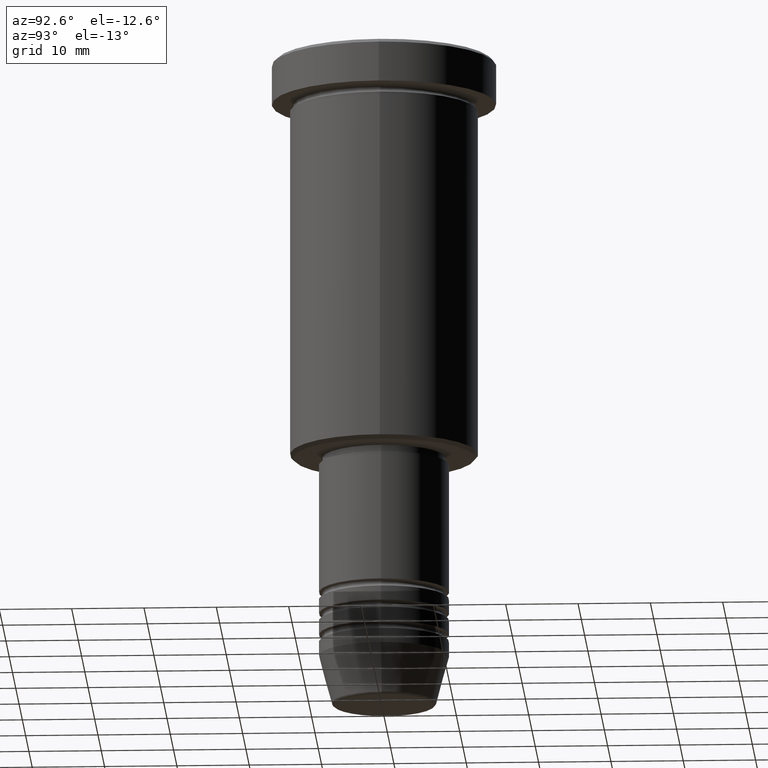
[diagram: clean part render]
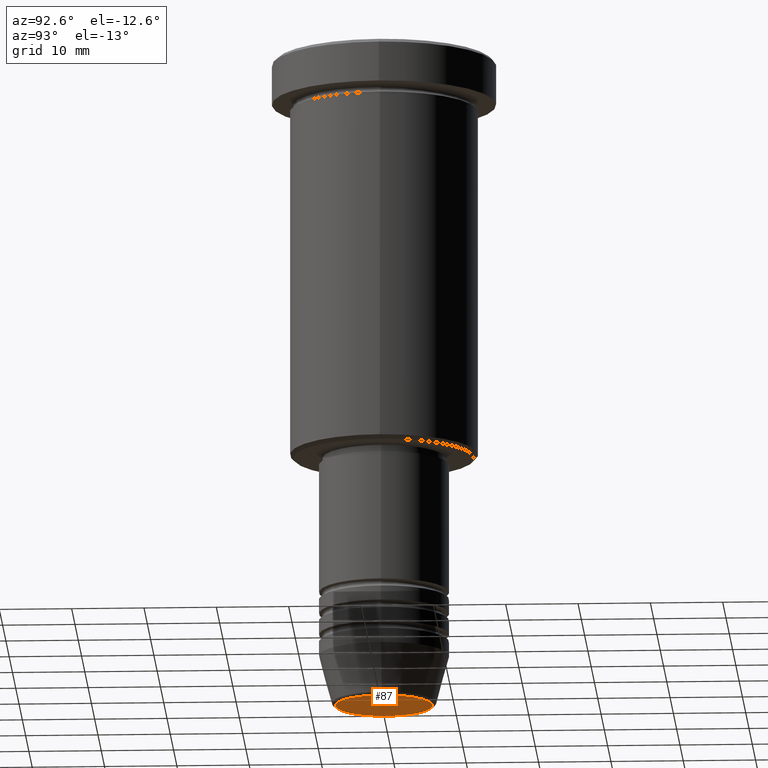
[diagram: same view with one face highlighted and labeled with its STEP entity id]
A machine part, auxiliary view. The second image highlights one B-rep face of the part: STEP entity #87.
In plain terms, the highlighted planar face has unit normal (0, -0, 1).
Its self-contained STEP definition (entity closure, byte-faithful):
#41 = VERTEX_POINT ( 'NONE', #1058 ) ;
#63 = AXIS2_PLACEMENT_3D ( 'NONE', #1178, #196, #188 ) ;
#72 = CARTESIAN_POINT ( 'NONE',  ( 0.000000000000000000, 0.000000000000000000, -91.00000000000000000 ) ) ;
#87 = ADVANCED_FACE ( 'NONE', ( #508 ), #874, .F. ) ;
#188 = DIRECTION ( 'NONE',  ( 1.000000000000000000, 0.000000000000000000, 0.000000000000000000 ) ) ;
#196 = DIRECTION ( 'NONE',  ( 0.000000000000000000, -0.000000000000000000, 1.000000000000000000 ) ) ;
#343 = ORIENTED_EDGE ( 'NONE', *, *, #787, .T. ) ;
#420 = DIRECTION ( 'NONE',  ( 0.000000000000000000, 0.000000000000000000, -1.000000000000000000 ) ) ;
#445 = DIRECTION ( 'NONE',  ( 0.000000000000000000, 0.000000000000000000, -1.000000000000000000 ) ) ;
#504 = CARTESIAN_POINT ( 'NONE',  ( 0.000000000000000000, 0.000000000000000000, -91.00000000000000000 ) ) ;
#508 = FACE_OUTER_BOUND ( 'NONE', #1029, .T. ) ;
#545 = CIRCLE ( 'NONE', #582, 6.740692158992658278 ) ;
#582 = AXIS2_PLACEMENT_3D ( 'NONE', #72, #445, #800 ) ;
#607 = VERTEX_POINT ( 'NONE', #749 ) ;
#749 = CARTESIAN_POINT ( 'NONE',  ( 6.740692158992658278, 0.000000000000000000, -91.00000000000000000 ) ) ;
#787 = EDGE_CURVE ( 'NONE', #41, #607, #826, .T. ) ;
#796 = ORIENTED_EDGE ( 'NONE', *, *, #985, .T. ) ;
#800 = DIRECTION ( 'NONE',  ( 1.000000000000000000, 0.000000000000000000, 0.000000000000000000 ) ) ;
#826 = CIRCLE ( 'NONE', #1076, 6.740692158992658278 ) ;
#874 = PLANE ( 'NONE',  #63 ) ;
#985 = EDGE_CURVE ( 'NONE', #607, #41, #545, .T. ) ;
#1006 = DIRECTION ( 'NONE',  ( 1.000000000000000000, 0.000000000000000000, 0.000000000000000000 ) ) ;
#1029 = EDGE_LOOP ( 'NONE', ( #796, #343 ) ) ;
#1058 = CARTESIAN_POINT ( 'NONE',  ( -6.740692158992658278, 8.550696569392689626E-16, -91.00000000000000000 ) ) ;
#1076 = AXIS2_PLACEMENT_3D ( 'NONE', #504, #420, #1006 ) ;
#1178 = CARTESIAN_POINT ( 'NONE',  ( 0.000000000000000000, 0.000000000000000000, -91.00000000000000000 ) ) ;